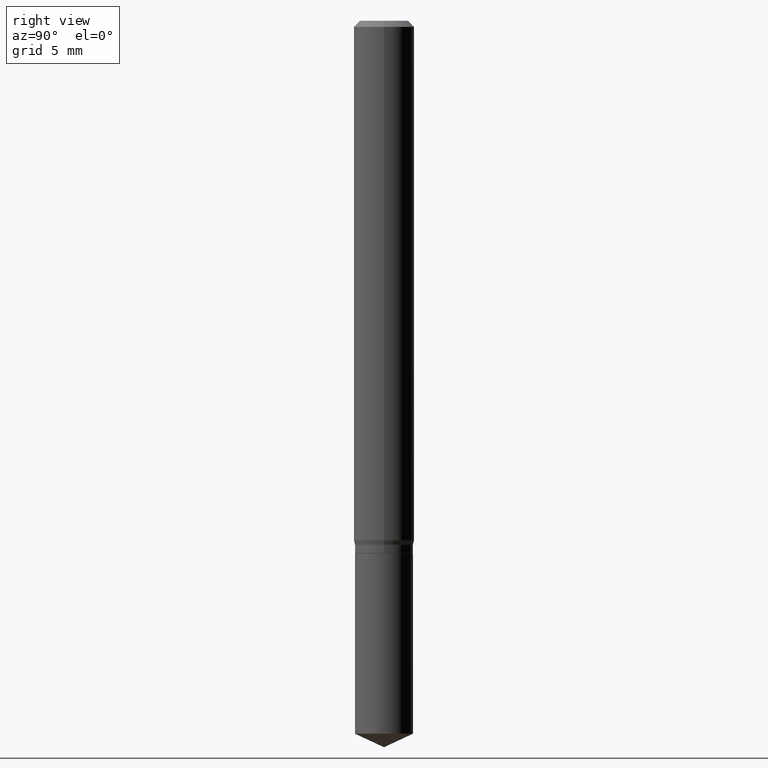
[diagram: clean part render]
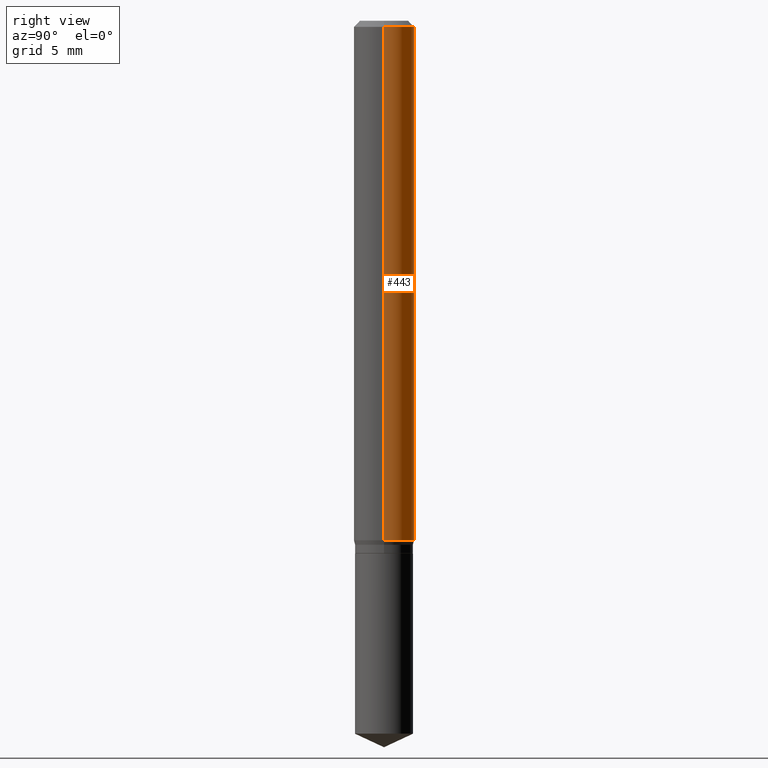
[diagram: same view with one face highlighted and labeled with its STEP entity id]
A machine part, right view. The second image highlights one B-rep face of the part: STEP entity #443.
In plain terms, the highlighted cylindrical surface (edge-blend (fillet) strip) has radius 1.5875 mm, axis along (-0, 0, 1).
Its self-contained STEP definition (entity closure, byte-faithful):
#1 = ORIENTED_EDGE ( 'NONE', *, *, #221, .F. ) ;
#4 = FACE_OUTER_BOUND ( 'NONE', #463, .T. ) ;
#31 = CIRCLE ( 'NONE', #356, 0.06250000000000012490 ) ;
#34 = DIRECTION ( 'NONE',  ( -2.445468806185136877E-29, 3.491481338843145188E-15, 1.000000000000000000 ) ) ;
#44 = ORIENTED_EDGE ( 'NONE', *, *, #386, .T. ) ;
#87 = AXIS2_PLACEMENT_3D ( 'NONE', #204, #323, #327 ) ;
#89 = CARTESIAN_POINT ( 'NONE',  ( -0.06250000000000000000, -1.450335970644045520E-15, -0.01250000000000008049 ) ) ;
#102 = DIRECTION ( 'NONE',  ( 1.000000000000000000, -6.982962677686264344E-15, 0.000000000000000000 ) ) ;
#114 = VERTEX_POINT ( 'NONE', #89 ) ;
#179 = CARTESIAN_POINT ( 'NONE',  ( 0.06250000000000012490, -4.181642011608071930E-15, -1.072669872981077521 ) ) ;
#204 = CARTESIAN_POINT ( 'NONE',  ( 3.056836007731440539E-31, -4.364351673553960451E-17, -0.01250000000000008049 ) ) ;
#206 = VERTEX_POINT ( 'NONE', #395 ) ;
#207 = LINE ( 'NONE', #364, #302 ) ;
#221 = EDGE_CURVE ( 'NONE', #458, #114, #382, .T. ) ;
#250 = ORIENTED_EDGE ( 'NONE', *, *, #360, .F. ) ;
#251 = LINE ( 'NONE', #432, #457 ) ;
#292 = AXIS2_PLACEMENT_3D ( 'NONE', #410, #449, #412 ) ;
#302 = VECTOR ( 'NONE', #353, 39.37007874015748143 ) ;
#304 = CYLINDRICAL_SURFACE ( 'NONE', #292, 0.06250000000000006939 ) ;
#323 = DIRECTION ( 'NONE',  ( -2.445468806185136597E-29, 3.491481338843145583E-15, 1.000000000000000000 ) ) ;
#327 = DIRECTION ( 'NONE',  ( 1.000000000000000000, -6.982962677686266711E-15, 0.000000000000000000 ) ) ;
#344 = CARTESIAN_POINT ( 'NONE',  ( 2.623180713709797511E-29, -3.745206844252678682E-15, -1.072669872981077521 ) ) ;
#346 = CARTESIAN_POINT ( 'NONE',  ( 0.06250000000000000000, -4.800786840909312308E-16, -0.01250000000000008049 ) ) ;
#353 = DIRECTION ( 'NONE',  ( -2.445468806185136877E-29, 3.491481338843145188E-15, 1.000000000000000000 ) ) ;
#356 = AXIS2_PLACEMENT_3D ( 'NONE', #344, #445, #102 ) ;
#360 = EDGE_CURVE ( 'NONE', #430, #458, #207, .T. ) ;
#364 = CARTESIAN_POINT ( 'NONE',  ( 0.06250000000000006939, -4.364351673553921624E-16, 3.047610484872463374E-30 ) ) ;
#382 = CIRCLE ( 'NONE', #87, 0.06250000000000000000 ) ;
#386 = EDGE_CURVE ( 'NONE', #430, #206, #31, .T. ) ;
#395 = CARTESIAN_POINT ( 'NONE',  ( -0.06250000000000012490, -3.301117634402615672E-15, -1.072669872981077521 ) ) ;
#402 = EDGE_CURVE ( 'NONE', #206, #114, #251, .T. ) ;
#410 = CARTESIAN_POINT ( 'NONE',  ( 0.000000000000000000, 0.000000000000000000, 0.000000000000000000 ) ) ;
#412 = DIRECTION ( 'NONE',  ( 1.000000000000000000, -6.982962677686266711E-15, 4.876176775795935793E-29 ) ) ;
#430 = VERTEX_POINT ( 'NONE', #179 ) ;
#432 = CARTESIAN_POINT ( 'NONE',  ( -0.06250000000000006939, 4.440892098500631092E-16, -3.074334431409319267E-30 ) ) ;
#443 = ADVANCED_FACE ( 'NONE', ( #4 ), #304, .T. ) ;
#445 = DIRECTION ( 'NONE',  ( -2.445468806185136597E-29, 3.491481338843145583E-15, 1.000000000000000000 ) ) ;
#449 = DIRECTION ( 'NONE',  ( -2.445468806185136597E-29, 3.491481338843145583E-15, 1.000000000000000000 ) ) ;
#457 = VECTOR ( 'NONE', #34, 39.37007874015748143 ) ;
#458 = VERTEX_POINT ( 'NONE', #346 ) ;
#463 = EDGE_LOOP ( 'NONE', ( #44, #466, #1, #250 ) ) ;
#466 = ORIENTED_EDGE ( 'NONE', *, *, #402, .T. ) ;